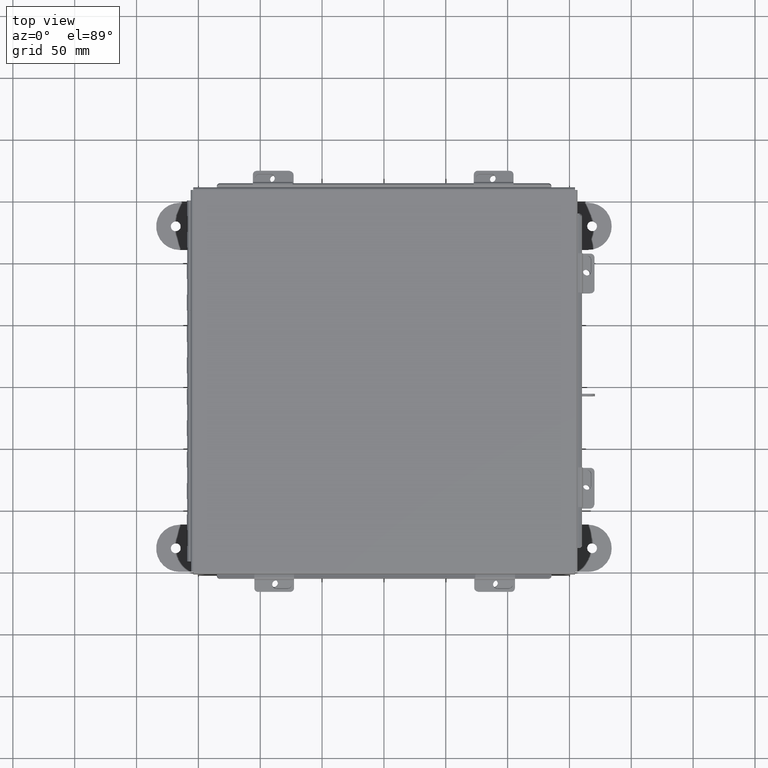
[diagram: clean part render]
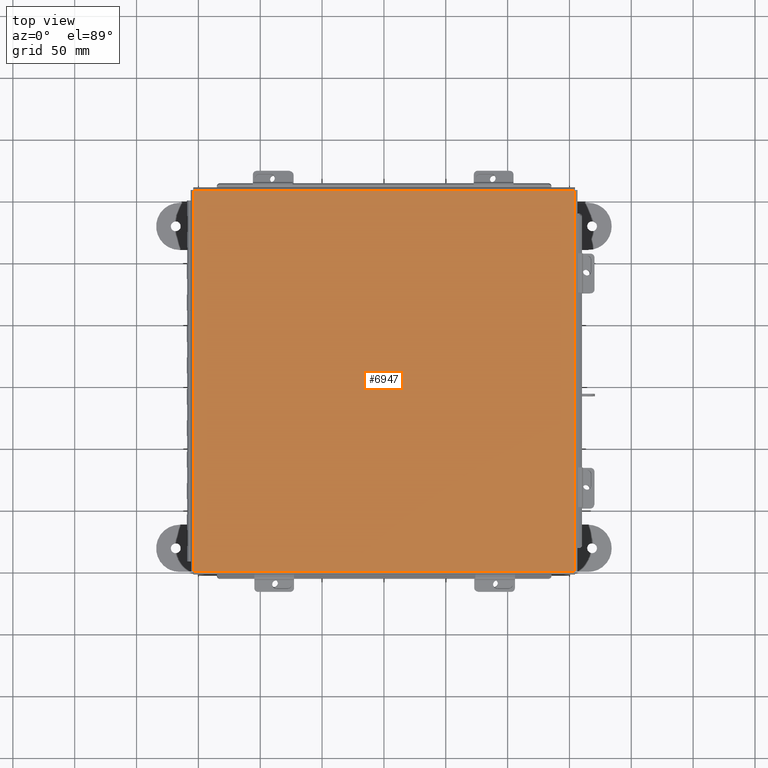
[diagram: same view with one face highlighted and labeled with its STEP entity id]
A machine part, top view. The second image highlights one B-rep face of the part: STEP entity #6947.
In plain terms, the highlighted planar face has unit normal (-0, -0, 1).
Its self-contained STEP definition (entity closure, byte-faithful):
#147 = EDGE_LOOP ( 'NONE', ( #15668, #13021, #5529, #4958 ) ) ;
#212 = DIRECTION ( 'NONE',  ( -1.577721810442015900E-030, 3.549874073494535600E-030, -1.000000000000000000 ) ) ;
#1426 = CARTESIAN_POINT ( 'NONE',  ( -6.068550000000011700, 6.068549999999987700, -0.07470000000000015500 ) ) ;
#2696 = VECTOR ( 'NONE', #9860, 39.37007874015748100 ) ;
#3110 = CARTESIAN_POINT ( 'NONE',  ( 6.074478932188172900, -6.068550000000011700, -0.07470000000000015500 ) ) ;
#4068 = VERTEX_POINT ( 'NONE', #15030 ) ;
#4076 = CARTESIAN_POINT ( 'NONE',  ( 6.068550000000035600, 6.074478932188125000, -0.07470000000000015500 ) ) ;
#4357 = EDGE_CURVE ( 'NONE', #14311, #8667, #12968, .T. ) ;
#4958 = ORIENTED_EDGE ( 'NONE', *, *, #12796, .T. ) ;
#5529 = ORIENTED_EDGE ( 'NONE', *, *, #7856, .T. ) ;
#6490 = DIRECTION ( 'NONE',  ( 1.300855605617851200E-030, 1.000000000000000000, -3.451266460341926600E-030 ) ) ;
#6586 = DIRECTION ( 'NONE',  ( -1.000000000000000000, -1.152944185888926400E-030, 1.577721810442015900E-030 ) ) ;
#6884 = FACE_OUTER_BOUND ( 'NONE', #147, .T. ) ;
#6947 = ADVANCED_FACE ( 'NONE', ( #6884 ), #13722, .T. ) ;
#7856 = EDGE_CURVE ( 'NONE', #10161, #4068, #14589, .T. ) ;
#8100 = VECTOR ( 'NONE', #8345, 39.37007874015748100 ) ;
#8345 = DIRECTION ( 'NONE',  ( -1.000000000000000000, -1.152944185888926400E-030, 1.577721810442015900E-030 ) ) ;
#8667 = VERTEX_POINT ( 'NONE', #13295 ) ;
#8731 = DIRECTION ( 'NONE',  ( 1.000000000000000000, 1.152944185888926400E-030, -1.577721810442015900E-030 ) ) ;
#9172 = EDGE_CURVE ( 'NONE', #8667, #10161, #14876, .T. ) ;
#9540 = CARTESIAN_POINT ( 'NONE',  ( -6.074478932188148900, 6.068549999999987700, -0.07470000000000015500 ) ) ;
#9596 = AXIS2_PLACEMENT_3D ( 'NONE', #15297, #212, #6586 ) ;
#9860 = DIRECTION ( 'NONE',  ( -1.300855605617851200E-030, -1.000000000000000000, 3.451266460341926600E-030 ) ) ;
#10161 = VERTEX_POINT ( 'NONE', #13738 ) ;
#11992 = CARTESIAN_POINT ( 'NONE',  ( -6.068550000000011700, -6.074478932188148900, -0.07470000000000015500 ) ) ;
#12444 = LINE ( 'NONE', #11992, #15307 ) ;
#12796 = EDGE_CURVE ( 'NONE', #4068, #14311, #12444, .T. ) ;
#12968 = LINE ( 'NONE', #9540, #14747 ) ;
#13021 = ORIENTED_EDGE ( 'NONE', *, *, #9172, .T. ) ;
#13295 = CARTESIAN_POINT ( 'NONE',  ( 6.068550000000035600, 6.068549999999987700, -0.07470000000000015500 ) ) ;
#13722 = PLANE ( 'NONE',  #9596 ) ;
#13738 = CARTESIAN_POINT ( 'NONE',  ( 6.068550000000035600, -6.068550000000011700, -0.07470000000000015500 ) ) ;
#14311 = VERTEX_POINT ( 'NONE', #1426 ) ;
#14589 = LINE ( 'NONE', #3110, #8100 ) ;
#14747 = VECTOR ( 'NONE', #8731, 39.37007874015748100 ) ;
#14876 = LINE ( 'NONE', #4076, #2696 ) ;
#15030 = CARTESIAN_POINT ( 'NONE',  ( -6.068550000000011700, -6.068550000000011700, -0.07470000000000015500 ) ) ;
#15297 = CARTESIAN_POINT ( 'NONE',  ( 0.0000000000000000000, 0.0000000000000000000, -0.07470000000000015500 ) ) ;
#15307 = VECTOR ( 'NONE', #6490, 39.37007874015748100 ) ;
#15668 = ORIENTED_EDGE ( 'NONE', *, *, #4357, .T. ) ;